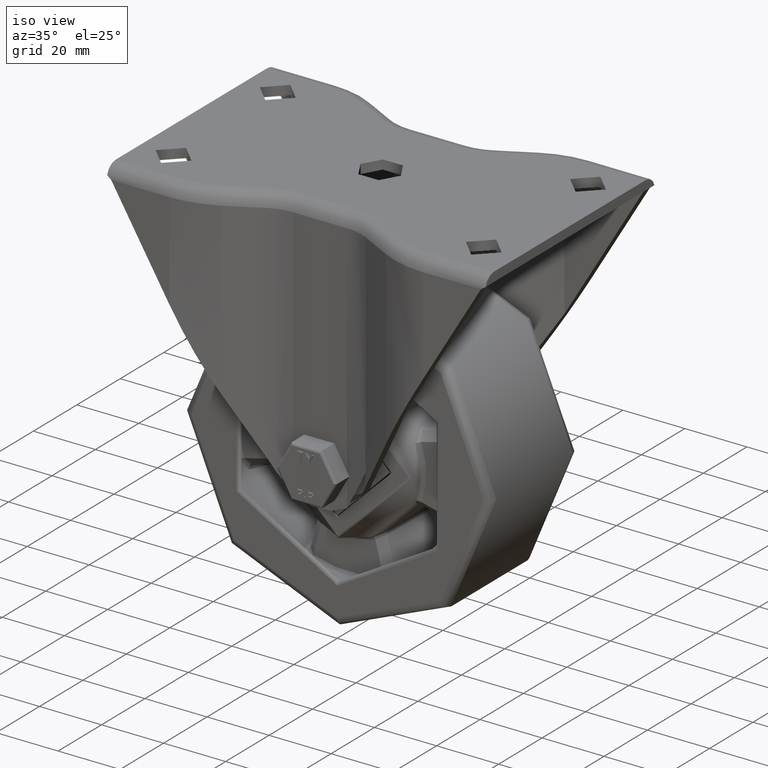
[diagram: clean part render]
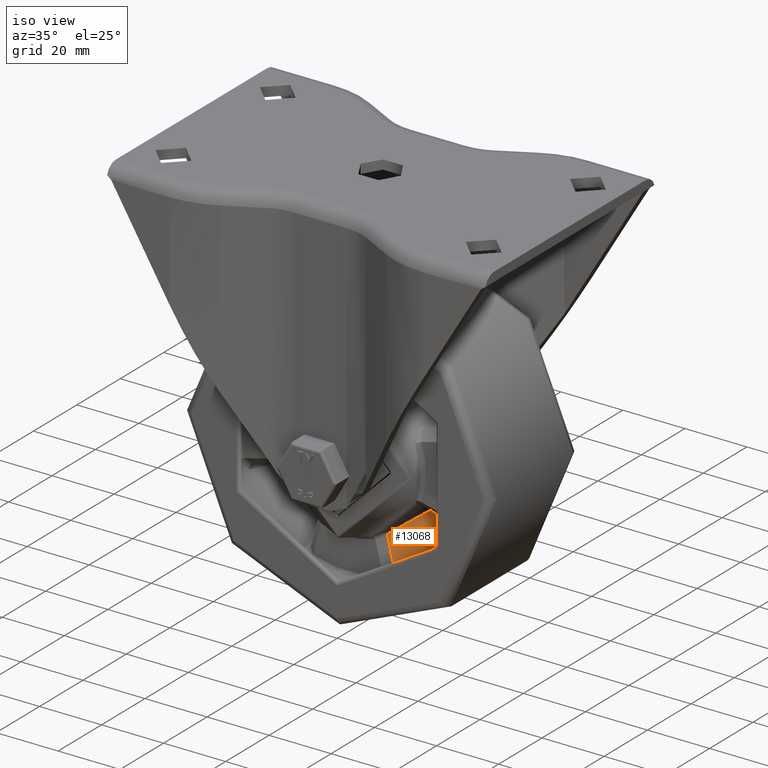
[diagram: same view with one face highlighted and labeled with its STEP entity id]
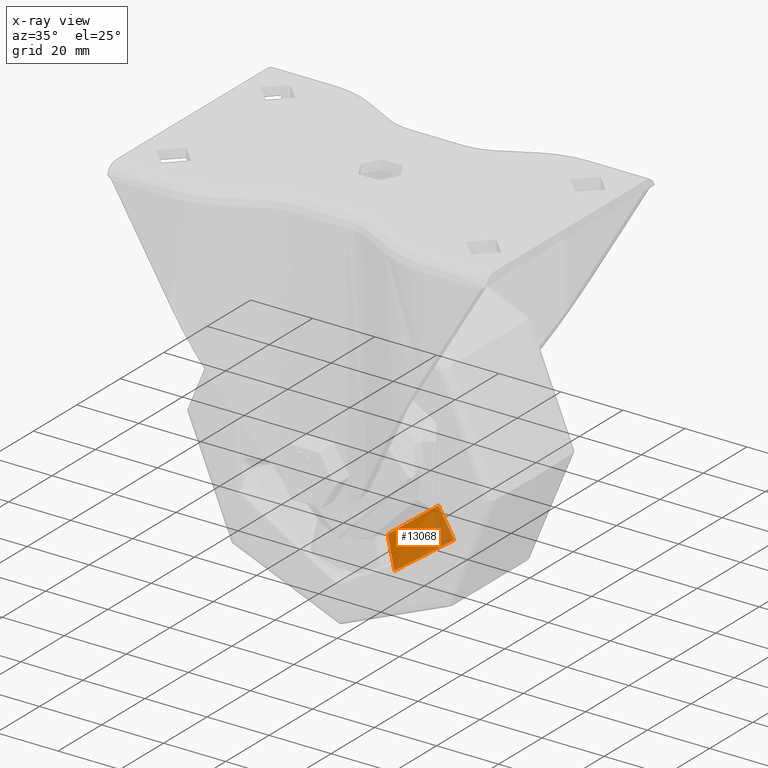
[diagram: x-ray of the same camera — body ghosted, the highlighted face saturated]
A machine part, iso view. The second image highlights one B-rep face of the part: STEP entity #13068.
The next image is the same camera in x-ray: the body ghosted, the highlighted face saturated — about 22% of this face is hidden behind the body in this view.
In plain terms, the highlighted face is a freeform B-spline surface patch.
Its self-contained STEP definition (entity closure, byte-faithful):
#143=B_SPLINE_SURFACE_WITH_KNOTS('',3,3,((#45206,#45207,#45208,#45209),
(#45210,#45211,#45212,#45213),(#45214,#45215,#45216,#45217),(#45218,#45219,
#45220,#45221)),.UNSPECIFIED.,.F.,.F.,.F.,(4,4),(4,4),(0.0428011481159679,
0.906073449082032),(-1.50308078470949E-15,0.878710552501142),
 .UNSPECIFIED.);
#811=B_SPLINE_CURVE_WITH_KNOTS('',3,(#33153,#33154,#33155,#33156,#33157,
#33158,#33159,#33160,#33161,#33162,#33163,#33164,#33165,#33166,#33167,#33168,
#33169),.UNSPECIFIED.,.F.,.F.,(4,2,2,2,1,2,2,2,4),(0.,0.00169466014231912,
0.0033379669469922,0.00436503369991288,0.0050069504204883,0.00564886714106373,
0.0066759338939844,0.00831924069865749,0.0100139004176239),
 .UNSPECIFIED.);
#825=B_SPLINE_CURVE_WITH_KNOTS('',3,(#35184,#35185,#35186,#35187,#35188,
#35189,#35190,#35191,#35192,#35193,#35194,#35195,#35196,#35197,#35198,#35199),
 .UNSPECIFIED.,.F.,.F.,(4,2,2,2,2,2,2,4),(6.46163066374986E-15,0.00456087057122094,
0.00898353294330771,0.0117476969258619,0.0134752994149583,0.0152029019040547,
0.017967065886609,0.0215459106587605),.UNSPECIFIED.);
#859=B_SPLINE_CURVE_WITH_KNOTS('',3,(#43268,#43269,#43270,#43271,#43272,
#43273,#43274,#43275,#43276,#43277,#43278,#43279,#43280,#43281,#43282,#43283),
 .UNSPECIFIED.,.F.,.F.,(4,2,2,2,2,2,2,4),(0.0012095059420566,0.00252192448348288,
0.0057584380256653,0.00778125898952932,0.00980407995339334,0.0130405934955758,
0.0182190151630676,0.0235592623465395),.UNSPECIFIED.);
#863=B_SPLINE_CURVE_WITH_KNOTS('',3,(#45194,#45195,#45196,#45197,#45198,
#45199,#45200,#45201,#45202,#45203,#45204,#45205),.UNSPECIFIED.,.F.,.F.,
(4,2,2,2,2,4),(-0.0115580758388723,-0.00932981066009416,-0.0061738624135336,
-0.00420139475943325,-0.0022289271053329,-0.00129005677676369),
 .UNSPECIFIED.);
#2515=FACE_OUTER_BOUND('',#3361,.T.);
#3361=EDGE_LOOP('',(#9899,#9900,#9901,#9902));
#5736=VERTEX_POINT('',#33122);
#5739=VERTEX_POINT('',#33151);
#5763=VERTEX_POINT('',#35182);
#5785=VERTEX_POINT('',#43267);
#7170=EDGE_CURVE('',#5739,#5736,#811,.T.);
#7223=EDGE_CURVE('',#5763,#5739,#825,.T.);
#7293=EDGE_CURVE('',#5736,#5785,#859,.T.);
#7303=EDGE_CURVE('',#5785,#5763,#863,.T.);
#9899=ORIENTED_EDGE('',*,*,#7170,.F.);
#9900=ORIENTED_EDGE('',*,*,#7223,.F.);
#9901=ORIENTED_EDGE('',*,*,#7303,.F.);
#9902=ORIENTED_EDGE('',*,*,#7293,.F.);
#13068=ADVANCED_FACE('',(#2515),#143,.T.);
#33122=CARTESIAN_POINT('',(17.3465288638545,8.9892546110101,-30.6518750843325));
#33151=CARTESIAN_POINT('',(12.4795404176498,8.84243925713685,-21.892728711056));
#33153=CARTESIAN_POINT('Ctrl Pts',(12.4795403992432,8.8424392605628,-21.8927287698647));
#33154=CARTESIAN_POINT('Ctrl Pts',(12.7523459349247,8.85090189812783,-22.387810764409));
#33155=CARTESIAN_POINT('Ctrl Pts',(13.025453162416,8.8593435737974,-22.8827255361206));
#33156=CARTESIAN_POINT('Ctrl Pts',(13.56398008448,8.87591983928316,-23.8572296950096));
#33157=CARTESIAN_POINT('Ctrl Pts',(13.8293819434561,8.88405598205546,-24.3368290225327));
#33158=CARTESIAN_POINT('Ctrl Pts',(14.2611113331522,8.89723016104711,-25.1159250126337));
#33159=CARTESIAN_POINT('Ctrl Pts',(14.4272695915715,8.90228584515199,-25.4155165244171));
#33160=CARTESIAN_POINT('Ctrl Pts',(14.6974516739973,8.91048123495927,-25.902254394526));
#33161=CARTESIAN_POINT('Ctrl Pts',(14.9053681350381,8.91677572005513,-26.2766208651422));
#33162=CARTESIAN_POINT('Ctrl Pts',(15.1134518906746,8.92304987064122,-26.6508930859813));
#33163=CARTESIAN_POINT('Ctrl Pts',(15.3840689144535,8.9311924022416,-27.1373859217064));
#33164=CARTESIAN_POINT('Ctrl Pts',(15.5507089482512,8.93618953845869,-27.436706014345));
#33165=CARTESIAN_POINT('Ctrl Pts',(15.9842473018753,8.94914401168686,-28.2147829012354));
#33166=CARTESIAN_POINT('Ctrl Pts',(16.2513101990295,8.95707848882014,-28.693446471689));
#33167=CARTESIAN_POINT('Ctrl Pts',(16.7943213230625,8.97311128652197,-29.6654243966058));
#33168=CARTESIAN_POINT('Ctrl Pts',(17.0702864145247,8.98120697644455,-30.1587291469323));
#33169=CARTESIAN_POINT('Ctrl Pts',(17.3465288786351,8.98925460250225,-30.6518750761918));
#35182=CARTESIAN_POINT('',(11.0509899366382,-12.6612424729813,-22.3705238236309));
#35184=CARTESIAN_POINT('Ctrl Pts',(11.0509899557614,-12.661242478886,-22.3705238187384));
#35185=CARTESIAN_POINT('Ctrl Pts',(11.1452859391821,-11.1432959545703,-22.343140409614));
#35186=CARTESIAN_POINT('Ctrl Pts',(11.2411624601012,-9.62547293118087,-22.31456369345));
#35187=CARTESIAN_POINT('Ctrl Pts',(11.4329229830142,-6.63608319953582,-22.2557181039183));
#35188=CARTESIAN_POINT('Ctrl Pts',(11.5287184896379,-5.16450860645052,-22.2255264396382));
#35189=CARTESIAN_POINT('Ctrl Pts',(11.686438116991,-2.77341349579,-22.1743452385572));
#35190=CARTESIAN_POINT('Ctrl Pts',(11.7475920756602,-1.85381283331702,-22.1541508880148));
#35191=CARTESIAN_POINT('Ctrl Pts',(11.8477064431122,-0.359546832633142,
-22.1204803060332));
#35192=CARTESIAN_POINT('Ctrl Pts',(11.8863895489677,0.215150266006651,-22.1073246713474));
#35193=CARTESIAN_POINT('Ctrl Pts',(11.9640907372823,1.36450410344398,-22.0805956462713));
#35194=CARTESIAN_POINT('Ctrl Pts',(12.0031088198389,1.93916088562448,-22.0670222523983));
#35195=CARTESIAN_POINT('Ctrl Pts',(12.1049632410887,3.43321614794136,-22.0311807303399));
#35196=CARTESIAN_POINT('Ctrl Pts',(12.1680442081677,4.35258317959116,-22.0085819830054));
#35197=CARTESIAN_POINT('Ctrl Pts',(12.3136099599469,6.4621643180942,-21.9554587017334));
#35198=CARTESIAN_POINT('Ctrl Pts',(12.3963346433798,7.65234366491851,-21.9245603327782));
#35199=CARTESIAN_POINT('Ctrl Pts',(12.479540510213,8.84243924834252,-21.8927286023499));
#43267=CARTESIAN_POINT('',(13.4671124292702,-12.9600046400154,-32.3503019851318));
#43268=CARTESIAN_POINT('Ctrl Pts',(17.3465286114358,8.98925462781585,-30.6518747379239));
#43269=CARTESIAN_POINT('Ctrl Pts',(17.2719965260022,8.55993740239165,-30.6901128008675));
#43270=CARTESIAN_POINT('Ctrl Pts',(17.1973066383256,8.13061424882574,-30.7280856728175));
#43271=CARTESIAN_POINT('Ctrl Pts',(16.9379228018305,6.6425199134675,-30.8587596304148));
#43272=CARTESIAN_POINT('Ctrl Pts',(16.7524923222222,5.58370624102122,-30.9500799923842));
#43273=CARTESIAN_POINT('Ctrl Pts',(16.4500577483885,3.86299806788484,-31.0956503908847));
#43274=CARTESIAN_POINT('Ctrl Pts',(16.3334700412431,3.2011545693377,-31.1509601378595));
#43275=CARTESIAN_POINT('Ctrl Pts',(16.0998598735798,1.87738697541129,-31.2601854750504));
#43276=CARTESIAN_POINT('Ctrl Pts',(15.9828374305235,1.21546287837521,-31.3141010615927));
#43277=CARTESIAN_POINT('Ctrl Pts',(15.6781430801326,-0.505663862830514,
-31.4524275605201));
#43278=CARTESIAN_POINT('Ctrl Pts',(15.490208860975,-1.56494558812658,-31.5357256728637));
#43279=CARTESIAN_POINT('Ctrl Pts',(15.0009866682499,-4.31950833598916,-31.7474159084402));
#43280=CARTESIAN_POINT('Ctrl Pts',(14.699345992101,-6.01504042939401,-31.8728715685804));
#43281=CARTESIAN_POINT('Ctrl Pts',(14.0871253793701,-9.46014534381422,-32.1176356393239));
#43282=CARTESIAN_POINT('Ctrl Pts',(13.7765626696363,-11.2097512414282,-32.2366293207704));
#43283=CARTESIAN_POINT('Ctrl Pts',(13.4671125599626,-12.9600046657928,-32.3503019440126));
#45194=CARTESIAN_POINT('Ctrl Pts',(13.467112090607,-12.9600042457381,-32.3503020772316));
#45195=CARTESIAN_POINT('Ctrl Pts',(13.2935313007053,-12.9389552335876,-31.6281038255214));
#45196=CARTESIAN_POINT('Ctrl Pts',(13.1197065184787,-12.9177546296356,-30.9059655884502));
#45197=CARTESIAN_POINT('Ctrl Pts',(12.6990726035415,-12.8662035986712,-29.1611964191718));
#45198=CARTESIAN_POINT('Ctrl Pts',(12.4520072405125,-12.8357193143953,-28.1386285117752));
#45199=CARTESIAN_POINT('Ctrl Pts',(12.0496536759763,-12.7858404013115,-26.4771702335429));
#45200=CARTESIAN_POINT('Ctrl Pts',(11.8946927126013,-12.7665741053609,-25.8381993721491));
#45201=CARTESIAN_POINT('Ctrl Pts',(11.58434156592,-12.7279070239285,-24.5603632243186));
#45202=CARTESIAN_POINT('Ctrl Pts',(11.4289513785928,-12.7085062460004,-23.921497938871));
#45203=CARTESIAN_POINT('Ctrl Pts',(11.1992746556219,-12.6797944163712,-22.9786200188922));
#45204=CARTESIAN_POINT('Ctrl Pts',(11.1251571962841,-12.6705234545194,-22.6745657967681));
#45205=CARTESIAN_POINT('Ctrl Pts',(11.0509898792335,-12.6612424552698,-22.3705238381144));
#45206=CARTESIAN_POINT('Ctrl Pts',(11.0509899557612,-12.6612424788908,-22.3705238187386));
#45207=CARTESIAN_POINT('Ctrl Pts',(11.4410829575899,-5.34079754776328,-21.9755922554749));
#45208=CARTESIAN_POINT('Ctrl Pts',(11.7999181600187,1.98150092636959,-21.5792799107233));
#45209=CARTESIAN_POINT('Ctrl Pts',(12.1352438848379,9.30573585898366,-21.2036068454964));
#45210=CARTESIAN_POINT('Ctrl Pts',(11.907535257403,-12.7684270482024,-25.8818524136534));
#45211=CARTESIAN_POINT('Ctrl Pts',(12.5928463611744,-5.44939541977153,-25.3652540514855));
#45212=CARTESIAN_POINT('Ctrl Pts',(13.2471581877491,1.87271255260986,-24.8472915567965));
#45213=CARTESIAN_POINT('Ctrl Pts',(13.8781584685781,9.19803354617582,-24.3497908628787));
#45214=CARTESIAN_POINT('Ctrl Pts',(12.7573580081627,-12.8742256408935,-29.3948345501894));
#45215=CARTESIAN_POINT('Ctrl Pts',(13.7378536439769,-5.5565504822109,-28.757202299819));
#45216=CARTESIAN_POINT('Ctrl Pts',(14.687865487359,1.76537500599991,-28.1182309994923));
#45217=CARTESIAN_POINT('Ctrl Pts',(15.6149650824057,9.09173793377718,-27.4993740984615));
#45218=CARTESIAN_POINT('Ctrl Pts',(13.6014017925117,-12.9762645271273,-32.9092381354663));
#45219=CARTESIAN_POINT('Ctrl Pts',(14.8770766837756,-5.65980217873121,-32.151110191999));
#45220=CARTESIAN_POINT('Ctrl Pts',(16.1229819550299,1.6619611085928,-31.3916744010504));
#45221=CARTESIAN_POINT('Ctrl Pts',(17.3465288794742,8.98925460752728,-30.6518750756845));